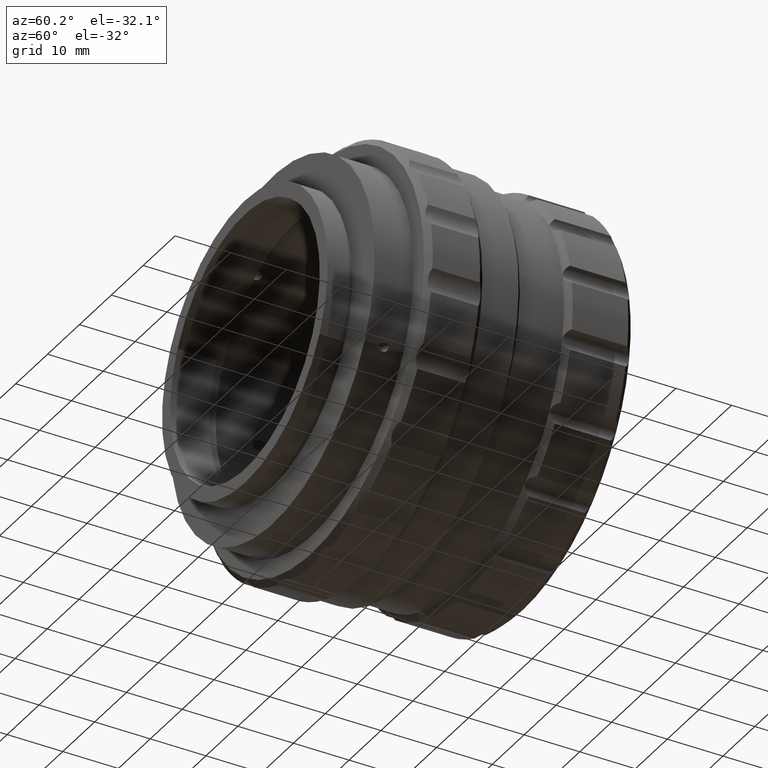
[diagram: clean part render]
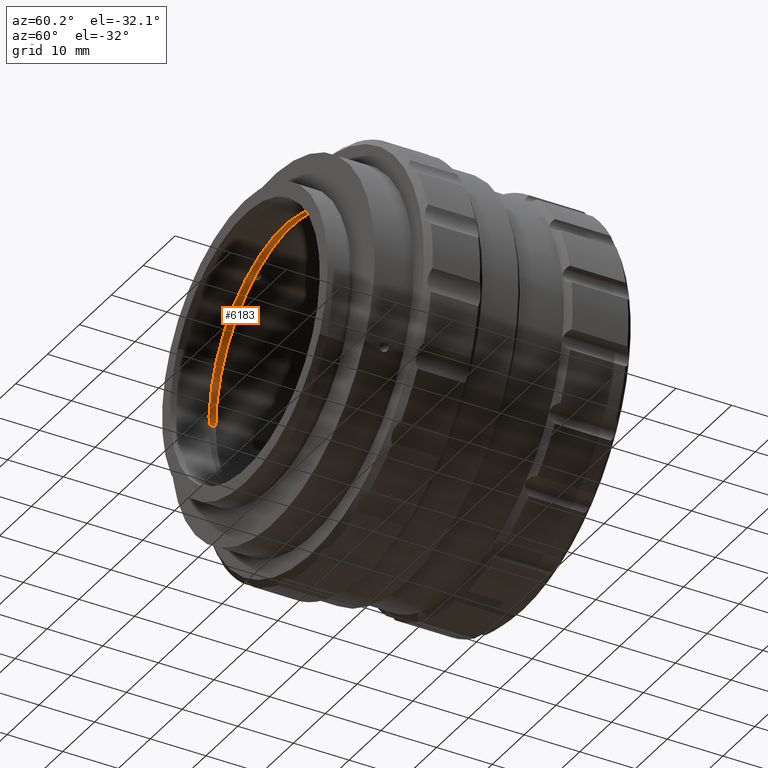
[diagram: same view with one face highlighted and labeled with its STEP entity id]
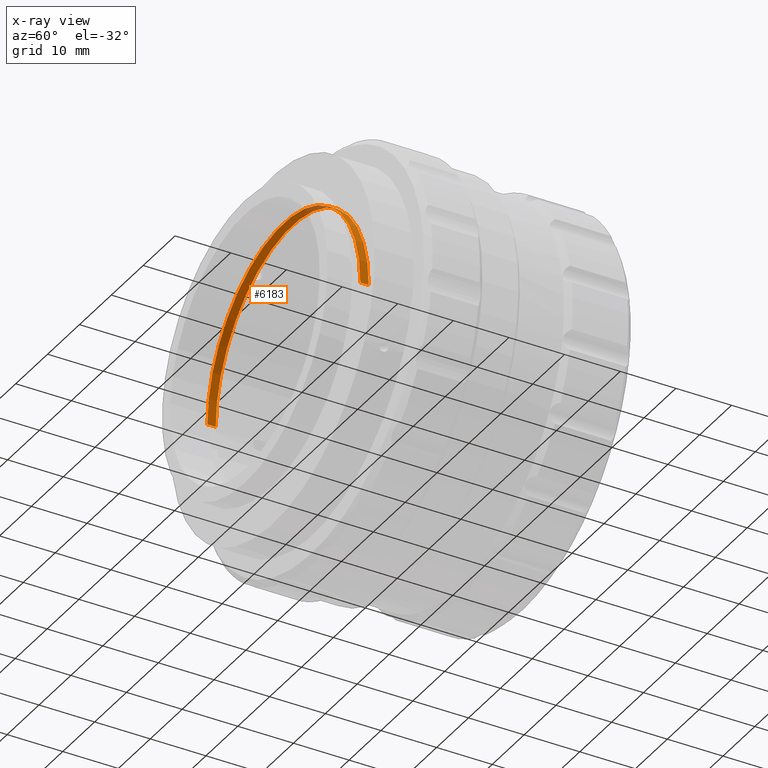
[diagram: x-ray of the same camera — body ghosted, the highlighted face saturated]
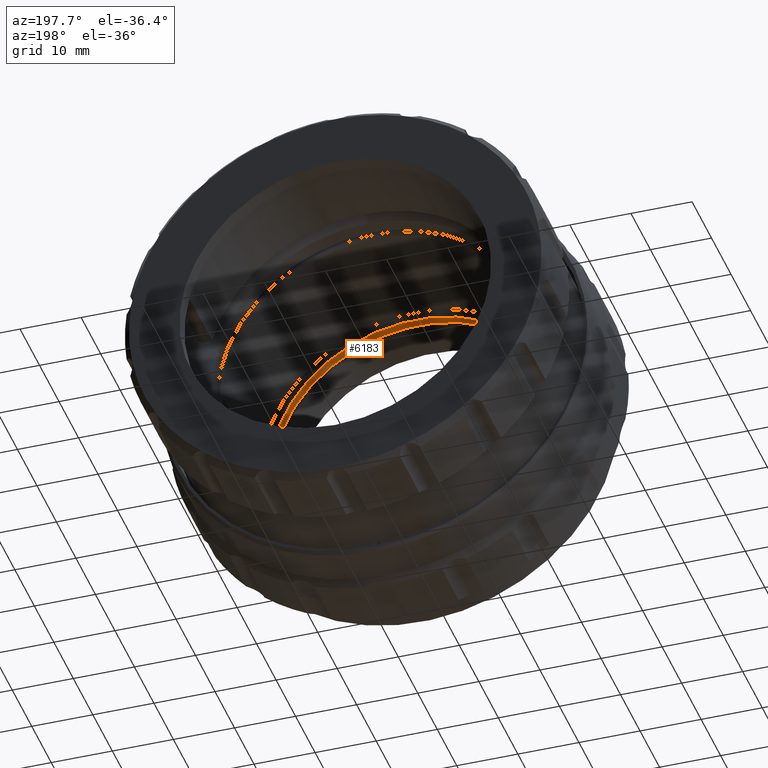
[diagram: same view with one face highlighted and labeled with its STEP entity id]
A machine part, auxiliary view. The second image highlights one B-rep face of the part: STEP entity #6183.
The next image is the same camera in x-ray: the body ghosted, the highlighted face saturated — about 4% of this face is hidden behind the body in this view.
A second angle (auxiliary view) of the same face is appended — the face is thin or edge-on in the first view.
In plain terms, the highlighted cylindrical surface (partial cylindrical patch) has radius 24 mm, axis along (0, -1, 0).
Its self-contained STEP definition (entity closure, byte-faithful):
#744 = ORIENTED_EDGE ( 'NONE', *, *, #7155, .F. ) ;
#883 = DIRECTION ( 'NONE',  ( 0.000000000000000000, -1.000000000000000000, 0.000000000000000000 ) ) ;
#1170 = VERTEX_POINT ( 'NONE', #9613 ) ;
#1263 = EDGE_CURVE ( 'NONE', #2439, #1329, #3771, .T. ) ;
#1329 = VERTEX_POINT ( 'NONE', #3989 ) ;
#1716 = ORIENTED_EDGE ( 'NONE', *, *, #4373, .T. ) ;
#1880 = CARTESIAN_POINT ( 'NONE',  ( 29.97169727419152352, -26.54875568700541777, 44.88990772118587103 ) ) ;
#2439 = VERTEX_POINT ( 'NONE', #1880 ) ;
#2700 = CARTESIAN_POINT ( 'NONE',  ( 5.971701014312827738, -28.04875568700541777, 44.90330644533106863 ) ) ;
#2725 = VERTEX_POINT ( 'NONE', #9683 ) ;
#2919 = CARTESIAN_POINT ( 'NONE',  ( 29.97169727419152352, -28.04875568700541777, 44.88990772118587103 ) ) ;
#3641 = CIRCLE ( 'NONE', #4500, 24.00000000000000355 ) ;
#3771 = CIRCLE ( 'NONE', #9738, 24.00000000000000355 ) ;
#3989 = CARTESIAN_POINT ( 'NONE',  ( -18.02829524556586449, -26.54875568700541777, 44.91670516947625913 ) ) ;
#4243 = AXIS2_PLACEMENT_3D ( 'NONE', #7192, #6382, #9636 ) ;
#4373 = EDGE_CURVE ( 'NONE', #1170, #2725, #3641, .T. ) ;
#4500 = AXIS2_PLACEMENT_3D ( 'NONE', #2700, #9964, #9229 ) ;
#4557 = EDGE_LOOP ( 'NONE', ( #7472, #8817, #1716, #744 ) ) ;
#5698 = CARTESIAN_POINT ( 'NONE',  ( -18.02829524556586449, -28.04875568700541777, 44.91670516947625913 ) ) ;
#6183 = ADVANCED_FACE ( 'NONE', ( #8939 ), #7239, .F. ) ;
#6187 = DIRECTION ( 'NONE',  ( 0.000000000000000000, -1.000000000000000000, 0.000000000000000000 ) ) ;
#6382 = DIRECTION ( 'NONE',  ( 0.000000000000000000, -1.000000000000000000, 0.000000000000000000 ) ) ;
#6447 = LINE ( 'NONE', #5698, #7438 ) ;
#6769 = EDGE_CURVE ( 'NONE', #2439, #1170, #9433, .T. ) ;
#7155 = EDGE_CURVE ( 'NONE', #1329, #2725, #6447, .T. ) ;
#7192 = CARTESIAN_POINT ( 'NONE',  ( 5.971701014312827738, -28.04875568700541777, 44.90330644533106863 ) ) ;
#7239 = CYLINDRICAL_SURFACE ( 'NONE', #4243, 24.00000000000000355 ) ;
#7438 = VECTOR ( 'NONE', #9702, 1000.000000000000000 ) ;
#7472 = ORIENTED_EDGE ( 'NONE', *, *, #1263, .F. ) ;
#8035 = DIRECTION ( 'NONE',  ( -0.9999998441616121392, 0.000000000000000000, 0.0005582801727163748135 ) ) ;
#8817 = ORIENTED_EDGE ( 'NONE', *, *, #6769, .T. ) ;
#8939 = FACE_OUTER_BOUND ( 'NONE', #4557, .T. ) ;
#8974 = CARTESIAN_POINT ( 'NONE',  ( 5.971701014312827738, -26.54875568700541777, 44.90330644533106863 ) ) ;
#9124 = VECTOR ( 'NONE', #6187, 1000.000000000000000 ) ;
#9229 = DIRECTION ( 'NONE',  ( -0.9999998441616121392, 0.000000000000000000, 0.0005582801727163748135 ) ) ;
#9433 = LINE ( 'NONE', #2919, #9124 ) ;
#9613 = CARTESIAN_POINT ( 'NONE',  ( 29.97169727419152352, -28.04875568700541777, 44.88990772118587103 ) ) ;
#9636 = DIRECTION ( 'NONE',  ( -0.9999998441616121392, 0.000000000000000000, 0.0005582801727163748135 ) ) ;
#9683 = CARTESIAN_POINT ( 'NONE',  ( -18.02829524556586449, -28.04875568700541777, 44.91670516947625913 ) ) ;
#9702 = DIRECTION ( 'NONE',  ( 0.000000000000000000, -1.000000000000000000, 0.000000000000000000 ) ) ;
#9738 = AXIS2_PLACEMENT_3D ( 'NONE', #8974, #883, #8035 ) ;
#9964 = DIRECTION ( 'NONE',  ( 0.000000000000000000, -1.000000000000000000, 0.000000000000000000 ) ) ;